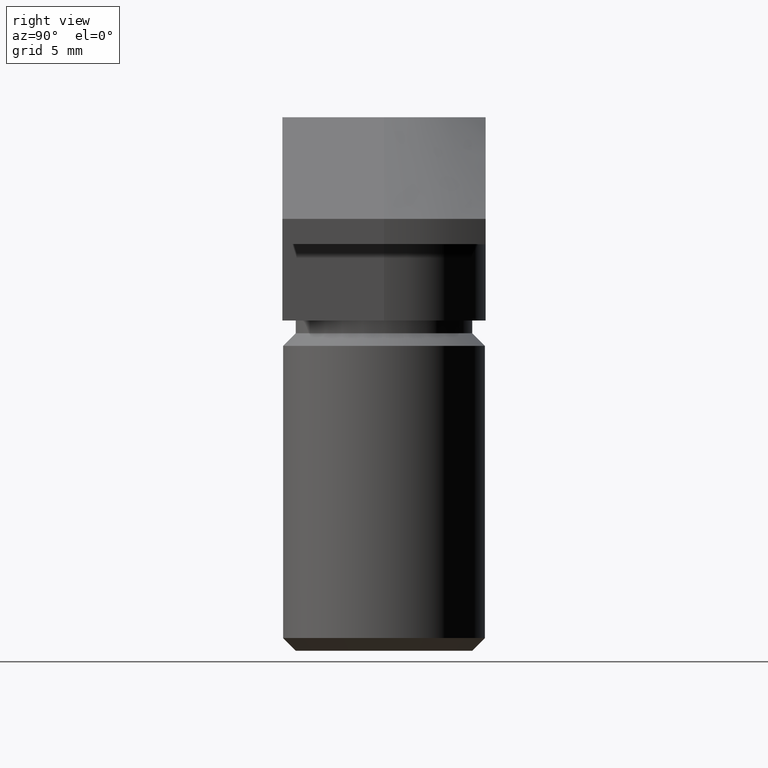
[diagram: clean part render]
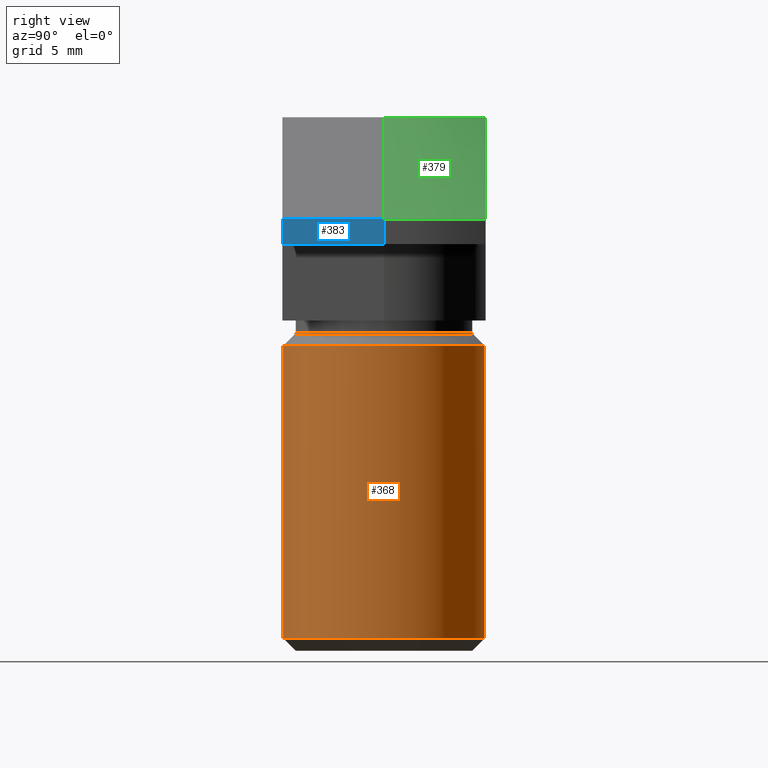
[diagram: same view with three faces highlighted in distinct colors, each labeled with its STEP entity id]
A machine part, right view with three faces highlighted in distinct colors.
Their STEP definitions:

[orange] entity #368 — the highlighted cylindrical surface (bore or boss wall) has radius 4 mm, axis along (0, 0, -1).
#98=CYLINDRICAL_SURFACE('',#395,4.);
#105=FACE_BOUND('',#135,.T.);
#110=FACE_OUTER_BOUND('',#134,.T.);
#134=EDGE_LOOP('',(#263));
#135=EDGE_LOOP('',(#264));
#160=CIRCLE('',#393,4.);
#162=CIRCLE('',#396,4.);
#175=VERTEX_POINT('',#544);
#177=VERTEX_POINT('',#549);
#210=EDGE_CURVE('',#175,#175,#160,.T.);
#212=EDGE_CURVE('',#177,#177,#162,.T.);
#263=ORIENTED_EDGE('',*,*,#212,.F.);
#264=ORIENTED_EDGE('',*,*,#210,.F.);
#368=ADVANCED_FACE('',(#110,#105),#98,.T.);
#393=AXIS2_PLACEMENT_3D('',#545,#434,#435);
#395=AXIS2_PLACEMENT_3D('',#548,#438,#439);
#396=AXIS2_PLACEMENT_3D('',#550,#440,#441);
#434=DIRECTION('center_axis',(0.,0.,1.));
#435=DIRECTION('ref_axis',(1.,0.,0.));
#438=DIRECTION('center_axis',(0.,0.,-1.));
#439=DIRECTION('ref_axis',(1.,0.,0.));
#440=DIRECTION('center_axis',(0.,0.,-1.));
#441=DIRECTION('ref_axis',(1.,0.,0.));
#544=CARTESIAN_POINT('',(-4.,-4.89858719658941E-16,-9.));
#545=CARTESIAN_POINT('Origin',(0.,0.,-9.));
#548=CARTESIAN_POINT('Origin',(0.,0.,-8.5));
#549=CARTESIAN_POINT('',(-4.,4.89858719658941E-16,-20.5));
#550=CARTESIAN_POINT('Origin',(0.,0.,-20.5));

[blue] entity #383 — the highlighted planar face has unit normal (1, 0, 0).
#33=LINE('',#605,#67);
#37=LINE('',#620,#71);
#41=LINE('',#637,#75);
#42=LINE('',#638,#76);
#67=VECTOR('',#494,4.);
#71=VECTOR('',#506,1.);
#75=VECTOR('',#520,4.);
#76=VECTOR('',#521,1.);
#91=PLANE('',#423);
#125=FACE_OUTER_BOUND('',#153,.T.);
#153=EDGE_LOOP('',(#321,#322,#323,#324));
#196=VERTEX_POINT('',#602);
#197=VERTEX_POINT('',#604);
#201=VERTEX_POINT('',#615);
#206=VERTEX_POINT('',#636);
#237=EDGE_CURVE('',#196,#197,#33,.T.);
#244=EDGE_CURVE('',#201,#196,#37,.T.);
#251=EDGE_CURVE('',#201,#206,#41,.T.);
#252=EDGE_CURVE('',#197,#206,#42,.T.);
#321=ORIENTED_EDGE('',*,*,#244,.F.);
#322=ORIENTED_EDGE('',*,*,#251,.T.);
#323=ORIENTED_EDGE('',*,*,#252,.F.);
#324=ORIENTED_EDGE('',*,*,#237,.F.);
#383=ADVANCED_FACE('',(#125),#91,.T.);
#423=AXIS2_PLACEMENT_3D('',#635,#518,#519);
#494=DIRECTION('',(0.,-1.,0.));
#506=DIRECTION('',(0.,0.,-1.));
#518=DIRECTION('center_axis',(1.,0.,0.));
#519=DIRECTION('ref_axis',(0.,0.,-1.));
#520=DIRECTION('',(0.,-1.,0.));
#521=DIRECTION('',(0.,0.,1.));
#602=CARTESIAN_POINT('',(9.,0.,-5.));
#604=CARTESIAN_POINT('',(9.,-4.,-5.));
#605=CARTESIAN_POINT('',(9.,0.,-5.));
#615=CARTESIAN_POINT('',(9.,0.,-4.));
#620=CARTESIAN_POINT('',(9.,0.,-4.5));
#635=CARTESIAN_POINT('Origin',(9.,0.,-4.));
#636=CARTESIAN_POINT('',(9.,-4.,-4.));
#637=CARTESIAN_POINT('',(9.,0.,-4.));
#638=CARTESIAN_POINT('',(9.,-4.,-5.));

[green] entity #379 — the highlighted conical surface has half-angle 45 deg.
#15=(
BOUNDED_CURVE()
B_SPLINE_CURVE(2,(#610,#611,#612),.UNSPECIFIED.,.F.,.F.)
B_SPLINE_CURVE_WITH_KNOTS((3,3),(0.,0.645810133031387),.UNSPECIFIED.)
CURVE()
GEOMETRIC_REPRESENTATION_ITEM()
RATIONAL_B_SPLINE_CURVE((1.,1.07257323111151,1.))
REPRESENTATION_ITEM('')
);
#35=LINE('',#616,#69);
#69=VECTOR('',#500,5.65685424949238);
#121=FACE_OUTER_BOUND('',#149,.T.);
#149=EDGE_LOOP('',(#305,#306,#307,#308));
#171=CIRCLE('',#416,5.);
#172=CIRCLE('',#417,9.);
#198=VERTEX_POINT('',#608);
#199=VERTEX_POINT('',#609);
#200=VERTEX_POINT('',#613);
#201=VERTEX_POINT('',#615);
#239=EDGE_CURVE('',#198,#199,#15,.T.);
#240=EDGE_CURVE('',#200,#198,#171,.T.);
#241=EDGE_CURVE('',#200,#201,#35,.T.);
#242=EDGE_CURVE('',#201,#199,#172,.T.);
#305=ORIENTED_EDGE('',*,*,#239,.F.);
#306=ORIENTED_EDGE('',*,*,#240,.F.);
#307=ORIENTED_EDGE('',*,*,#241,.T.);
#308=ORIENTED_EDGE('',*,*,#242,.T.);
#365=CONICAL_SURFACE('',#415,7.,45.);
#379=ADVANCED_FACE('',(#121),#365,.T.);
#415=AXIS2_PLACEMENT_3D('',#607,#496,#497);
#416=AXIS2_PLACEMENT_3D('',#614,#498,#499);
#417=AXIS2_PLACEMENT_3D('',#617,#501,#502);
#496=DIRECTION('center_axis',(0.,0.,-1.));
#497=DIRECTION('ref_axis',(1.,0.,0.));
#498=DIRECTION('center_axis',(2.04289535270664E-17,0.,1.));
#499=DIRECTION('ref_axis',(1.,0.,0.));
#500=DIRECTION('',(0.707106781186547,0.,-0.707106781186548));
#501=DIRECTION('center_axis',(2.9781283147877E-16,2.9781283147877E-16,1.));
#502=DIRECTION('ref_axis',(1.,1.2335811384724E-16,-3.08395284618099E-16));
#607=CARTESIAN_POINT('Origin',(0.,0.,-2.));
#608=CARTESIAN_POINT('',(3.,4.,0.));
#609=CARTESIAN_POINT('',(8.06225774829855,4.,-4.));
#610=CARTESIAN_POINT('Ctrl Pts',(3.,4.,-2.77555756156289E-16));
#611=CARTESIAN_POINT('Ctrl Pts',(4.80794919582092,4.,-1.08476951749255));
#612=CARTESIAN_POINT('Ctrl Pts',(8.06225774829855,4.,-4.));
#613=CARTESIAN_POINT('',(5.,0.,0.));
#614=CARTESIAN_POINT('Origin',(0.,0.,2.77555756156289E-16));
#615=CARTESIAN_POINT('',(9.,0.,-4.));
#616=CARTESIAN_POINT('',(7.,0.,-2.));
#617=CARTESIAN_POINT('Origin',(-1.11022302462516E-15,-1.11022302462516E-15,
-4.));